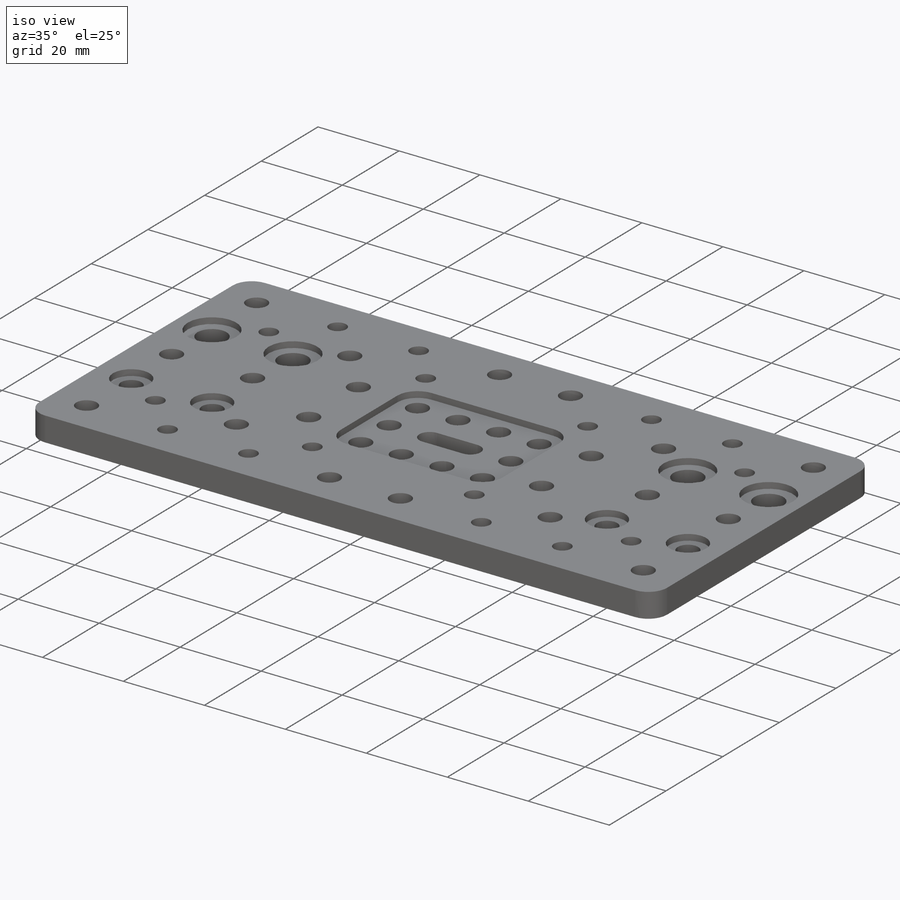
[diagram: iso view]
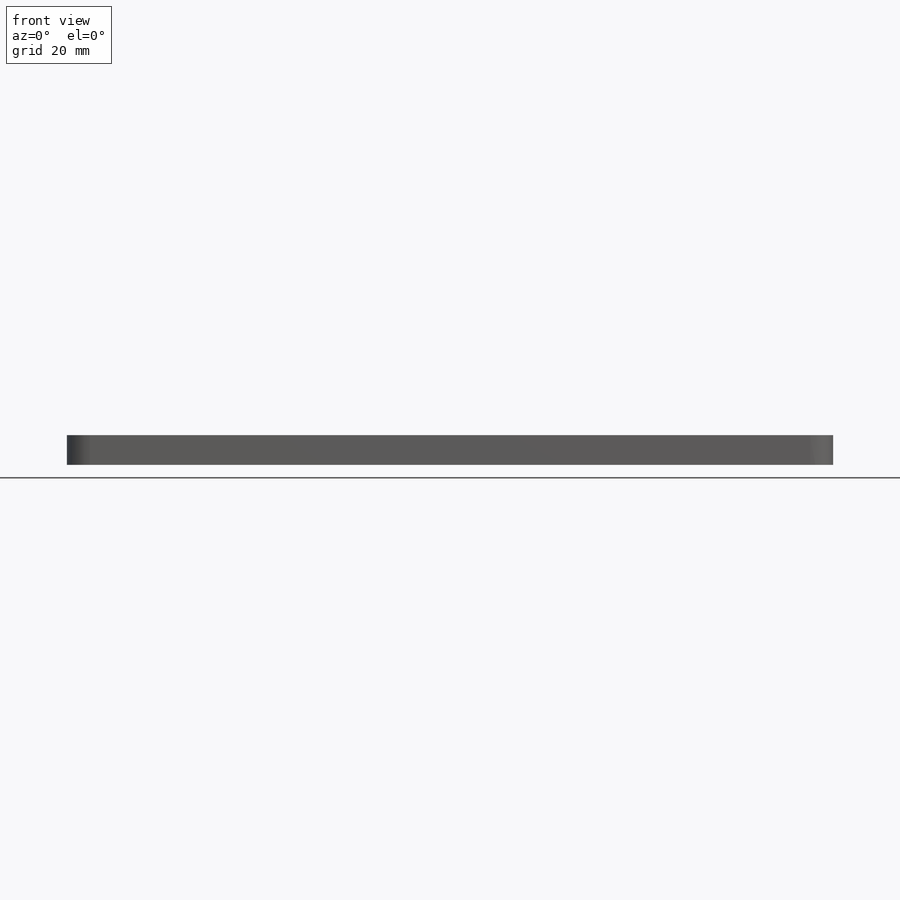
[diagram: front view]
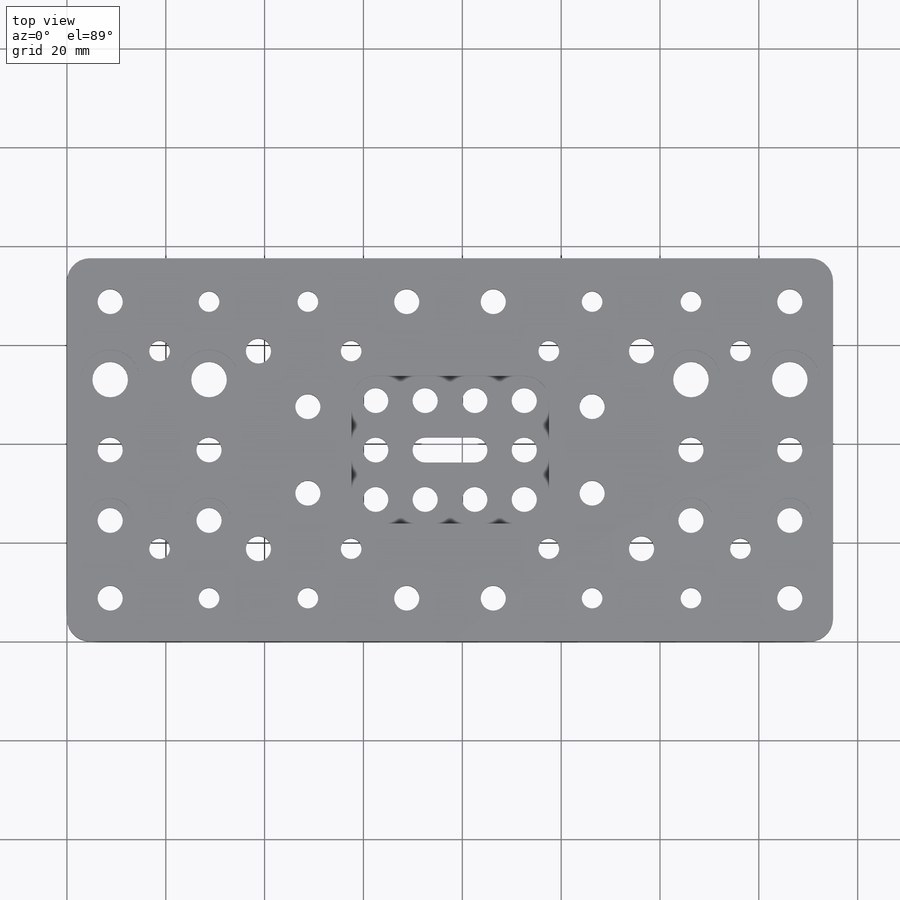
[diagram: top view]
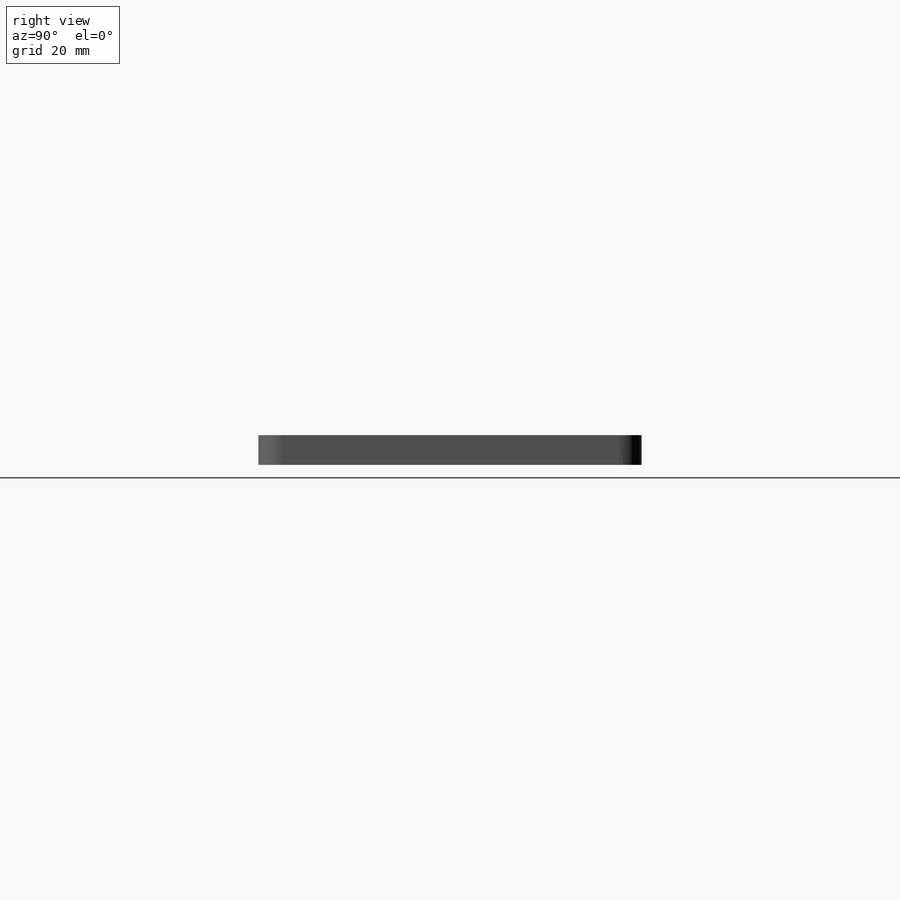
[diagram: right view]
SOLIDWORKS PART (.sldprt)
format: sldprt  version: not decoded by parser v0  size: 420,352 bytes
history: native  units: mm
features: sketch x8, cut_extrude x3, hole x2, material x1, extrude x1 (+13 scaffold rows collapsed)
feature tree (28):
  scaffold x13  (default folders/planes/origin — collapsed)
  material  "6061-T6 (SS)"
  sketch  "Sketch1"  dims[D3=4.64mm D1=77.52mm D2=155.02mm]
  extrude  "Boss-Extrude1"  Depth=6mm
  hole  "Ø5.1 (5.1) Diameter Hole1"  Diameter=5.1mm Depth=6mm
  sketch  "Sketch3"  dims[D1=10.0mm D2=10.0mm D3=17.51mm D4=30.0mm D5=30.0mm D6=20.0mm D7=10.05mm D8=17.51mm D9=60.0mm D10=20.0mm D11=10.0mm]
  sketch  "Sketch2"  dims[hole-wizard template sketch: 59 standard entries collapsed; hole parameters kept: c18.Thru Hole Dia.=5.1mm c18.Thru Hole Depth=6.0mm]
  hole  "M5x0.8 Tapped Hole1"  Diameter=4.2mm Depth=6mm
  sketch  "Sketch5"  dims[c1.D5=5.1mm c1.D1=20.0mm c1.D2=40.0mm c1.D3=60.0mm c1.D4=40.0mm c2.D5=20.0mm c2.D6=38.76mm]
  sketch  "Sketch4"  dims[hole-wizard template sketch: 60 standard entries collapsed; hole parameters kept: c18.Thru Tap Drill Depth=6.0mm]
  sketch  "Sketch6"  dims[D1=7.2mm D2=5.1mm D3=28.5mm D4=20.0mm D5=15.75mm]
  cut_extrude  "Cut-Extrude1"  [1 undecoded]
  sketch  "Sketch7"  dims[D1=12.0mm D2=9.0mm D5=4.94mm D3=39.95mm D4=29.9mm]
  cut_extrude  "Cut-Extrude2"  Depth=1.5mm
  sketch  "Sketch8"  dims[D1=10.05mm D2=5.1mm]
  cut_extrude  "Cut-Extrude3"  [1 undecoded]
decode coverage: 12 of 14 modeling features carry decoded parameters
note: ~ marks probable driven/reference dimensions
note: 2 parameter values undecoded
note: suppression state not decoded; provenance and decode notes live in map.json
